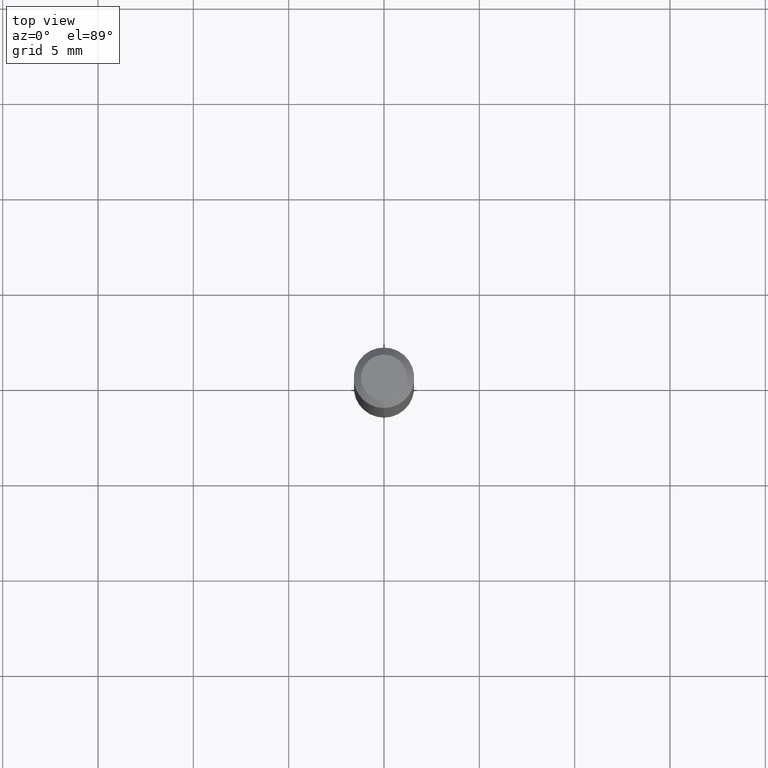
[diagram: clean part render]
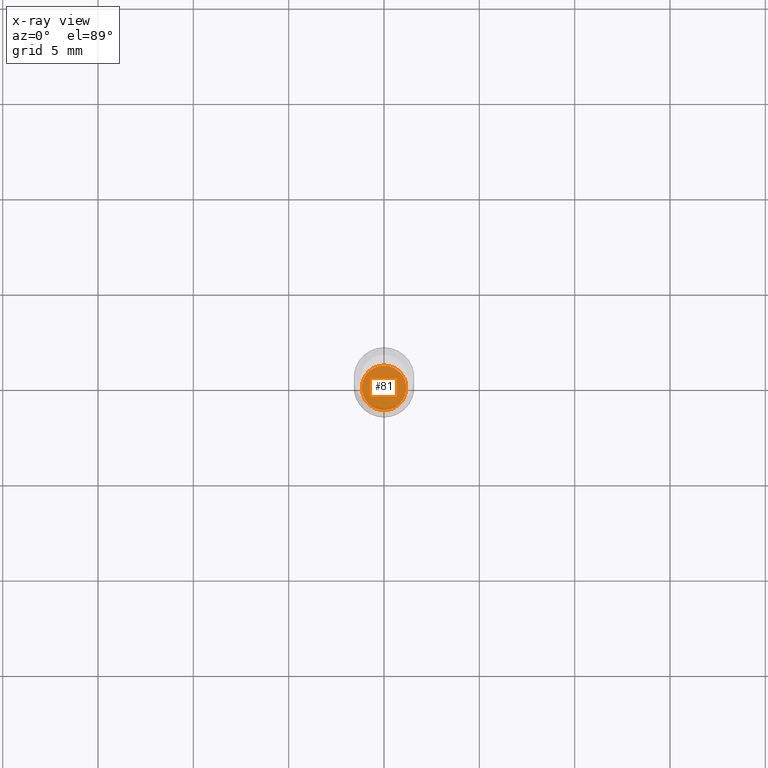
[diagram: x-ray — body ghosted, one internal face saturated and labeled with its STEP entity id]
A machine part, top view, then the same camera in x-ray: the body is ghosted and one INTERNAL B-rep face — a face not visible from any outside direction — is saturated and labeled: STEP entity #81.
In plain terms, the highlighted planar face has unit normal (-0, 0, 1).
Its self-contained STEP definition (entity closure, byte-faithful):
#25 = AXIS2_PLACEMENT_3D ( 'NONE', #341, #386, #311 ) ;
#42 = AXIS2_PLACEMENT_3D ( 'NONE', #447, #444, #363 ) ;
#44 = EDGE_CURVE ( 'NONE', #427, #69, #216, .T. ) ;
#53 = AXIS2_PLACEMENT_3D ( 'NONE', #251, #484, #205 ) ;
#69 = VERTEX_POINT ( 'NONE', #408 ) ;
#81 = ADVANCED_FACE ( 'NONE', ( #353 ), #318, .F. ) ;
#94 = ORIENTED_EDGE ( 'NONE', *, *, #44, .F. ) ;
#135 = EDGE_CURVE ( 'NONE', #69, #427, #159, .T. ) ;
#159 = CIRCLE ( 'NONE', #42, 0.04599999999999999922 ) ;
#184 = ORIENTED_EDGE ( 'NONE', *, *, #135, .F. ) ;
#205 = DIRECTION ( 'NONE',  ( -6.982962677686265922E-15, -1.000000000000000000, 3.491589779709075635E-15 ) ) ;
#216 = CIRCLE ( 'NONE', #25, 0.04599999999999999922 ) ;
#251 = CARTESIAN_POINT ( 'NONE',  ( 2.985824953528818158E-29, -4.263231121024781839E-15, -1.221000000000000085 ) ) ;
#311 = DIRECTION ( 'NONE',  ( -6.982962677686265133E-15, -1.000000000000000000, 2.969399993113329585E-15 ) ) ;
#318 = PLANE ( 'NONE',  #53 ) ;
#341 = CARTESIAN_POINT ( 'NONE',  ( 2.985824953528818158E-29, -4.263231121024781839E-15, -1.221000000000000085 ) ) ;
#353 = FACE_OUTER_BOUND ( 'NONE', #494, .T. ) ;
#363 = DIRECTION ( 'NONE',  ( -6.982962677686265133E-15, -1.000000000000000000, 2.969399993113329585E-15 ) ) ;
#386 = DIRECTION ( 'NONE',  ( -2.445393082333184106E-29, 3.491589779709075635E-15, 1.000000000000000000 ) ) ;
#408 = CARTESIAN_POINT ( 'NONE',  ( -3.212162831735383649E-16, -0.04600000000000425970, -1.221000000000000085 ) ) ;
#427 = VERTEX_POINT ( 'NONE', #474 ) ;
#444 = DIRECTION ( 'NONE',  ( -2.445393082333184106E-29, 3.491589779709075635E-15, 1.000000000000000000 ) ) ;
#447 = CARTESIAN_POINT ( 'NONE',  ( 2.985824953528818158E-29, -4.263231121024781839E-15, -1.221000000000000085 ) ) ;
#474 = CARTESIAN_POINT ( 'NONE',  ( 3.286260152890763087E-16, 0.04599999999999573874, -1.221000000000000307 ) ) ;
#484 = DIRECTION ( 'NONE',  ( -2.445393082333183826E-29, 3.491589779709075635E-15, 1.000000000000000000 ) ) ;
#494 = EDGE_LOOP ( 'NONE', ( #184, #94 ) ) ;